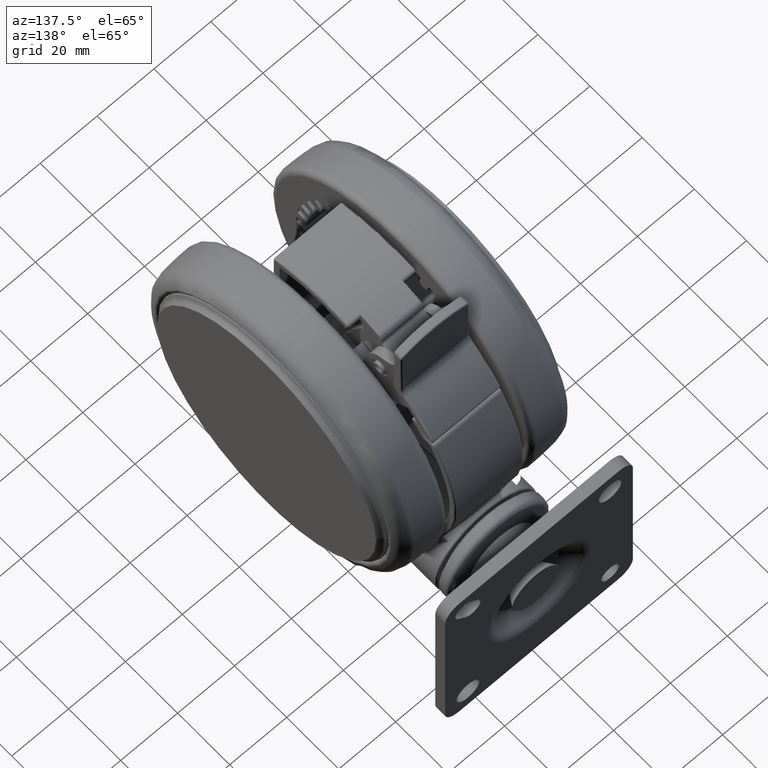
[diagram: clean part render]
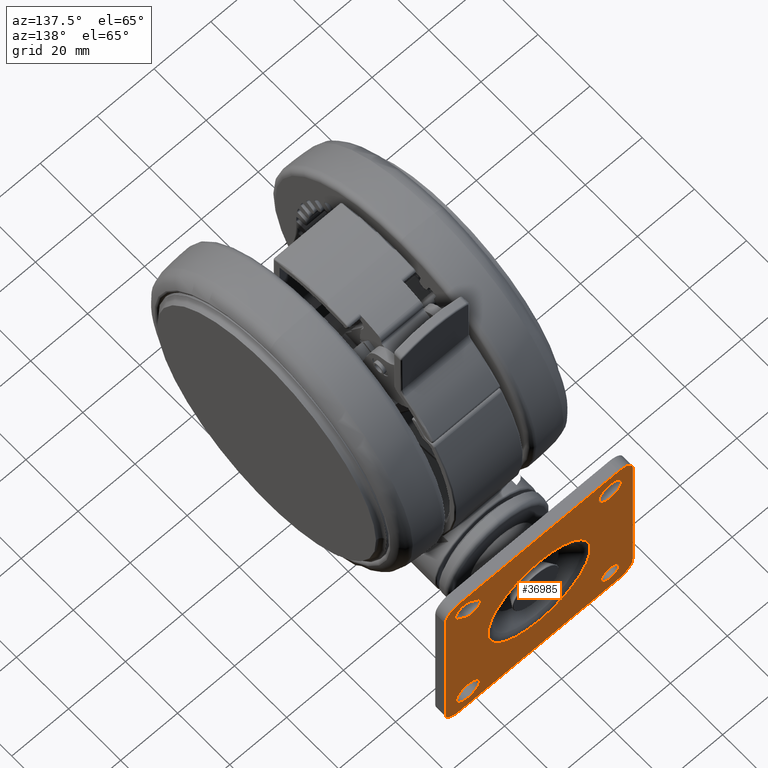
[diagram: same view with one face highlighted and labeled with its STEP entity id]
A machine part, auxiliary view. The second image highlights one B-rep face of the part: STEP entity #36985.
In plain terms, the highlighted planar face has unit normal (-0, -1, -0).
Its self-contained STEP definition (entity closure, byte-faithful):
#169 = CARTESIAN_POINT ( 'NONE',  ( -67.70913555310346500, 64.38509611796749300, -60.59999999999991600 ) ) ;
#667 = CARTESIAN_POINT ( 'NONE',  ( -68.78298377548159700, 11.39597600831103800, -57.60000000000275800 ) ) ;
#1983 = DIRECTION ( 'NONE',  ( 0.9997947190500680000, -0.02026128721468082100, -3.697785493223492800E-032 ) ) ;
#2478 = DIRECTION ( 'NONE',  ( -0.02026128721468178900, -0.9997947190500680000, 1.387778780781445700E-015 ) ) ;
#2587 = CARTESIAN_POINT ( 'NONE',  ( -68.84376763712559500, 8.396591851163682600, 0.4000000000000877900 ) ) ;
#2738 = FACE_BOUND ( 'NONE', #82946, .T. ) ;
#2905 = EDGE_CURVE ( 'NONE', #13064, #24455, #23645, .T. ) ;
#3110 = CARTESIAN_POINT ( 'NONE',  ( -67.70913555310346500, 64.38509611796749300, -4.599999999999913500 ) ) ;
#3217 = CARTESIAN_POINT ( 'NONE',  ( -68.70193862662287600, 15.39515488451129600, -57.60000000000275800 ) ) ;
#3739 = EDGE_CURVE ( 'NONE', #56880, #16636, #63595, .T. ) ;
#5003 = AXIS2_PLACEMENT_3D ( 'NONE', #32990, #77808, #39434 ) ;
#5074 = EDGE_CURVE ( 'NONE', #54279, #35074, #32438, .T. ) ;
#5092 = CIRCLE ( 'NONE', #33251, 17.99193848055664400 ) ;
#5484 = CARTESIAN_POINT ( 'NONE',  ( -67.70710942438194000, 64.48507558987533600, -57.60000000000275800 ) ) ;
#6494 = CARTESIAN_POINT ( 'NONE',  ( -67.91191176201110100, 54.37908906289973700, -32.59999999999991600 ) ) ;
#6550 = DIRECTION ( 'NONE',  ( -0.02026128721468178900, -0.9997947190500677800, 0.0000000000000000000 ) ) ;
#6975 = ORIENTED_EDGE ( 'NONE', *, *, #66624, .F. ) ;
#7043 = DIRECTION ( 'NONE',  ( -0.02026128721467977700, -0.9997947190500680000, 0.0000000000000000000 ) ) ;
#7289 = DIRECTION ( 'NONE',  ( 0.9997947190500680000, -0.02026128721468082100, -3.697785493223492800E-032 ) ) ;
#7945 = AXIS2_PLACEMENT_3D ( 'NONE', #3110, #47915, #9516 ) ;
#8338 = ORIENTED_EDGE ( 'NONE', *, *, #40302, .T. ) ;
#8820 = CARTESIAN_POINT ( 'NONE',  ( -68.75576267766992100, 12.73920309701977200, -8.943502884254565200 ) ) ;
#9330 = CARTESIAN_POINT ( 'NONE',  ( -68.84376763712559500, 8.396591851163686100, -65.59999999999990900 ) ) ;
#9516 = DIRECTION ( 'NONE',  ( -0.02026128721468178900, -0.9997947190500677800, 0.0000000000000000000 ) ) ;
#10451 = DIRECTION ( 'NONE',  ( -0.9997947190500680000, 0.02026128721468082100, 3.697785493223492800E-032 ) ) ;
#10952 = EDGE_LOOP ( 'NONE', ( #40491, #30424 ) ) ;
#11080 = ORIENTED_EDGE ( 'NONE', *, *, #58726, .T. ) ;
#11489 = CARTESIAN_POINT ( 'NONE',  ( -68.76579150317947200, 12.24432995907539400, -4.064466094067364000 ) ) ;
#11974 = AXIS2_PLACEMENT_3D ( 'NONE', #169, #44953, #6550 ) ;
#11997 = DIRECTION ( 'NONE',  ( 0.9997947190500678900, -0.02026128721468081800, -3.697785493223492300E-032 ) ) ;
#12287 = PLANE ( 'NONE',  #53943 ) ;
#12503 = CARTESIAN_POINT ( 'NONE',  ( -67.76991941474744900, 61.38571196082013900, -7.599999999997064200 ) ) ;
#12706 = EDGE_CURVE ( 'NONE', #51724, #51621, #47993, .T. ) ;
#12864 = VECTOR ( 'NONE', #81546, 999.9999999999998900 ) ;
#13064 = VERTEX_POINT ( 'NONE', #17512 ) ;
#13652 = EDGE_CURVE ( 'NONE', #53057, #13064, #29981, .T. ) ;
#15274 = DIRECTION ( 'NONE',  ( 0.02026128721468034900, 0.9997947190500678900, 0.0000000000000000000 ) ) ;
#15576 = LINE ( 'NONE', #33256, #60717 ) ;
#15922 = EDGE_CURVE ( 'NONE', #45115, #28688, #26577, .T. ) ;
#16304 = VERTEX_POINT ( 'NONE', #78425 ) ;
#16636 = VERTEX_POINT ( 'NONE', #5484 ) ;
#17291 = CIRCLE ( 'NONE', #44058, 3.099999999999987200 ) ;
#17512 = CARTESIAN_POINT ( 'NONE',  ( -68.71134930755620500, 14.93078413648765100, -6.751471862576276600 ) ) ;
#18715 = ORIENTED_EDGE ( 'NONE', *, *, #61618, .T. ) ;
#18798 = DIRECTION ( 'NONE',  ( -0.02026128721468081800, -0.9997947190500678900, 0.0000000000000000000 ) ) ;
#18947 = CARTESIAN_POINT ( 'NONE',  ( -67.68887426588872800, 65.38489083702039300, -7.599999999997065100 ) ) ;
#18988 = DIRECTION ( 'NONE',  ( -0.02026128721467978000, -0.9997947190500680000, 0.0000000000000000000 ) ) ;
#19448 = EDGE_LOOP ( 'NONE', ( #79050, #73068, #66179, #24798, #39660, #18715, #81440, #8338 ) ) ;
#19472 = CARTESIAN_POINT ( 'NONE',  ( -68.64099142821795900, 18.40259890623126900, -32.59999999999991600 ) ) ;
#19939 = DIRECTION ( 'NONE',  ( 0.9997947190500680000, -0.02026128721468082100, -3.697785493223492800E-032 ) ) ;
#20376 = DIRECTION ( 'NONE',  ( -0.01432689358506922400, -0.7069616256348081300, 0.7071067811865415800 ) ) ;
#20912 = CARTESIAN_POINT ( 'NONE',  ( -68.84376763712559500, 8.396591851163682600, -4.599999999999913500 ) ) ;
#20921 = CARTESIAN_POINT ( 'NONE',  ( -68.94507407319899500, 3.397618255913344300, -50.59999999999991600 ) ) ;
#21015 = EDGE_CURVE ( 'NONE', #31296, #62566, #56837, .T. ) ;
#21029 = ORIENTED_EDGE ( 'NONE', *, *, #31649, .T. ) ;
#22486 = DIRECTION ( 'NONE',  ( -0.9997947190500680000, 0.02026128721468082100, 3.697785493223492800E-032 ) ) ;
#22500 = CARTESIAN_POINT ( 'NONE',  ( -68.94507407319899500, 3.397618255913344300, -60.59999999999991600 ) ) ;
#22870 = CARTESIAN_POINT ( 'NONE',  ( -67.60782911703006400, 69.38406971321784100, -65.59999999999990900 ) ) ;
#22999 = EDGE_CURVE ( 'NONE', #51621, #51724, #44840, .T. ) ;
#23102 = CARTESIAN_POINT ( 'NONE',  ( -68.86402892434031700, 7.396797132110780400, -57.60000000000275800 ) ) ;
#23152 = DIRECTION ( 'NONE',  ( 0.02026128721468081800, 0.9997947190500678900, 0.0000000000000000000 ) ) ;
#23645 = CIRCLE ( 'NONE', #41479, 3.099999999999987200 ) ;
#23872 = VECTOR ( 'NONE', #71454, 1000.000000000000100 ) ;
#24442 = AXIS2_PLACEMENT_3D ( 'NONE', #12503, #57349, #18988 ) ;
#24455 = VERTEX_POINT ( 'NONE', #54364 ) ;
#24798 = ORIENTED_EDGE ( 'NONE', *, *, #15922, .T. ) ;
#24930 = CARTESIAN_POINT ( 'NONE',  ( -67.70913555310346500, 64.38509611796749300, -65.59999999999990900 ) ) ;
#26473 = CIRCLE ( 'NONE', #39784, 3.999999999999986200 ) ;
#26577 = CIRCLE ( 'NONE', #7945, 5.000000000000000000 ) ;
#27329 = DIRECTION ( 'NONE',  ( -0.02026128721468178900, -0.9997947190500680000, 0.0000000000000000000 ) ) ;
#27915 = EDGE_CURVE ( 'NONE', #30059, #53057, #46171, .T. ) ;
#28159 = EDGE_CURVE ( 'NONE', #65334, #80438, #77204, .T. ) ;
#28688 = VERTEX_POINT ( 'NONE', #45652 ) ;
#29305 = CARTESIAN_POINT ( 'NONE',  ( -68.78298377548159700, 11.39597600831103800, -57.60000000000275800 ) ) ;
#29981 = LINE ( 'NONE', #11489, #12864 ) ;
#30059 = VERTEX_POINT ( 'NONE', #59748 ) ;
#30424 = ORIENTED_EDGE ( 'NONE', *, *, #81259, .T. ) ;
#30590 = CARTESIAN_POINT ( 'NONE',  ( -67.70913555310346500, 64.38509611796749300, 0.4000000000000877900 ) ) ;
#31296 = VERTEX_POINT ( 'NONE', #9330 ) ;
#31649 = EDGE_CURVE ( 'NONE', #54165, #67025, #5092, .T. ) ;
#31947 = CARTESIAN_POINT ( 'NONE',  ( -67.76991941474744900, 61.38571196082013900, -7.599999999997064200 ) ) ;
#32256 = ORIENTED_EDGE ( 'NONE', *, *, #2905, .F. ) ;
#32438 = CIRCLE ( 'NONE', #48580, 5.000000000000000000 ) ;
#32787 = FACE_BOUND ( 'NONE', #10952, .T. ) ;
#32990 = CARTESIAN_POINT ( 'NONE',  ( -67.76991941474744900, 61.38571196082013900, -57.60000000000275800 ) ) ;
#33251 = AXIS2_PLACEMENT_3D ( 'NONE', #45696, #7289, #52133 ) ;
#33256 = CARTESIAN_POINT ( 'NONE',  ( -68.80017604778363700, 10.54762205755193200, -11.13553390593286700 ) ) ;
#34580 = VECTOR ( 'NONE', #52534, 1000.000000000000000 ) ;
#34823 = FACE_BOUND ( 'NONE', #67668, .T. ) ;
#35074 = VERTEX_POINT ( 'NONE', #2587 ) ;
#35743 = DIRECTION ( 'NONE',  ( -0.02026128721467977700, -0.9997947190500680000, 0.0000000000000000000 ) ) ;
#36195 = ORIENTED_EDGE ( 'NONE', *, *, #22999, .T. ) ;
#36985 = ADVANCED_FACE ( 'NONE', ( #2738, #66895, #34823, #32787, #81856, #64867 ), #12287, .F. ) ;
#38375 = DIRECTION ( 'NONE',  ( -0.02026128721467978000, -0.9997947190500680000, 0.0000000000000000000 ) ) ;
#39434 = DIRECTION ( 'NONE',  ( -0.02026128721468034900, -0.9997947190500678900, 0.0000000000000000000 ) ) ;
#39660 = ORIENTED_EDGE ( 'NONE', *, *, #55916, .F. ) ;
#39784 = AXIS2_PLACEMENT_3D ( 'NONE', #29305, #74105, #35743 ) ;
#39842 = ORIENTED_EDGE ( 'NONE', *, *, #28159, .T. ) ;
#40302 = EDGE_CURVE ( 'NONE', #31296, #59180, #52398, .T. ) ;
#40342 = CARTESIAN_POINT ( 'NONE',  ( -67.76991941474744900, 61.38571196082013900, -57.60000000000275800 ) ) ;
#40491 = ORIENTED_EDGE ( 'NONE', *, *, #3739, .T. ) ;
#40851 = DIRECTION ( 'NONE',  ( -0.9997947190500680000, 0.02026128721468082100, 3.697785493223492800E-032 ) ) ;
#41479 = AXIS2_PLACEMENT_3D ( 'NONE', #60889, #22486, #67315 ) ;
#43026 = CARTESIAN_POINT ( 'NONE',  ( -67.85096456360615500, 57.38653308461988400, -7.599999999997064200 ) ) ;
#44004 = EDGE_CURVE ( 'NONE', #54279, #59180, #68652, .T. ) ;
#44058 = AXIS2_PLACEMENT_3D ( 'NONE', #8820, #53646, #15274 ) ;
#44243 = CARTESIAN_POINT ( 'NONE',  ( -68.27645159511452300, 36.39084398456558500, -32.59999999999991600 ) ) ;
#44840 = CIRCLE ( 'NONE', #72371, 3.999999999999985300 ) ;
#44953 = DIRECTION ( 'NONE',  ( -0.9997947190500680000, 0.02026128721468082100, 3.697785493223492800E-032 ) ) ;
#45115 = VERTEX_POINT ( 'NONE', #30590 ) ;
#45433 = DIRECTION ( 'NONE',  ( 0.9997947190500680000, -0.02026128721468082100, -3.697785493223492800E-032 ) ) ;
#45652 = CARTESIAN_POINT ( 'NONE',  ( -67.60782911703006400, 69.38406971321782600, -4.599999999999913500 ) ) ;
#45696 = CARTESIAN_POINT ( 'NONE',  ( -68.27645159511452300, 36.39084398456550700, -32.59999999999991600 ) ) ;
#46171 = CIRCLE ( 'NONE', #75947, 3.100000000000002300 ) ;
#46784 = DIRECTION ( 'NONE',  ( -0.02026128721468034900, -0.9997947190500678900, 0.0000000000000000000 ) ) ;
#46952 = LINE ( 'NONE', #60725, #79046 ) ;
#47834 = CIRCLE ( 'NONE', #62728, 17.99193848055664400 ) ;
#47915 = DIRECTION ( 'NONE',  ( -0.9997947190500680000, 0.02026128721468082100, 3.697785493223492800E-032 ) ) ;
#47993 = CIRCLE ( 'NONE', #24442, 3.999999999999985300 ) ;
#48580 = AXIS2_PLACEMENT_3D ( 'NONE', #20912, #65724, #27329 ) ;
#48866 = CARTESIAN_POINT ( 'NONE',  ( -68.81020487329318800, 10.05274891960750200, -6.256497115745711200 ) ) ;
#51621 = VERTEX_POINT ( 'NONE', #43026 ) ;
#51724 = VERTEX_POINT ( 'NONE', #18947 ) ;
#52133 = DIRECTION ( 'NONE',  ( -0.02026128721468106000, -0.9997947190500677800, 0.0000000000000000000 ) ) ;
#52398 = CIRCLE ( 'NONE', #54213, 5.000000000000000000 ) ;
#52534 = DIRECTION ( 'NONE',  ( -7.070322314059470400E-035, 1.432832444260775400E-036, -1.000000000000000000 ) ) ;
#52840 = CARTESIAN_POINT ( 'NONE',  ( -67.60782911703006400, 69.38406971321784100, -60.59999999999990900 ) ) ;
#53057 = VERTEX_POINT ( 'NONE', #64752 ) ;
#53646 = DIRECTION ( 'NONE',  ( -0.9997947190500680000, 0.02026128721468082100, 3.697785493223492800E-032 ) ) ;
#53943 = AXIS2_PLACEMENT_3D ( 'NONE', #44243, #11997, #18798 ) ;
#54165 = VERTEX_POINT ( 'NONE', #19472 ) ;
#54213 = AXIS2_PLACEMENT_3D ( 'NONE', #79217, #40851, #2478 ) ;
#54248 = ORIENTED_EDGE ( 'NONE', *, *, #27915, .F. ) ;
#54279 = VERTEX_POINT ( 'NONE', #59241 ) ;
#54338 = CARTESIAN_POINT ( 'NONE',  ( -67.83272940511295700, 58.28634833176494100, -57.60000000000275800 ) ) ;
#54364 = CARTESIAN_POINT ( 'NONE',  ( -68.69295268730441300, 15.83856672607496900, -8.943502884254565200 ) ) ;
#54831 = EDGE_CURVE ( 'NONE', #45115, #35074, #74992, .T. ) ;
#55303 = DIRECTION ( 'NONE',  ( 0.02026128721468025200, 0.9997947190500680000, 0.0000000000000000000 ) ) ;
#55916 = EDGE_CURVE ( 'NONE', #60127, #28688, #46952, .T. ) ;
#56647 = EDGE_CURVE ( 'NONE', #67025, #54165, #47834, .T. ) ;
#56837 = LINE ( 'NONE', #22870, #73880 ) ;
#56880 = VERTEX_POINT ( 'NONE', #54338 ) ;
#57349 = DIRECTION ( 'NONE',  ( 0.9997947190500680000, -0.02026128721468082100, -3.697785493223492800E-032 ) ) ;
#58324 = CARTESIAN_POINT ( 'NONE',  ( -68.27645159511452300, 36.39084398456550700, -32.59999999999991600 ) ) ;
#58726 = EDGE_CURVE ( 'NONE', #80438, #65334, #26473, .T. ) ;
#59180 = VERTEX_POINT ( 'NONE', #22500 ) ;
#59241 = CARTESIAN_POINT ( 'NONE',  ( -68.94507407319899500, 3.397618255913344300, -4.599999999999917000 ) ) ;
#59748 = CARTESIAN_POINT ( 'NONE',  ( -68.85461824340690400, 7.861167880139665200, -8.448528137424013100 ) ) ;
#60127 = VERTEX_POINT ( 'NONE', #52840 ) ;
#60717 = VECTOR ( 'NONE', #20376, 1000.000000000000000 ) ;
#60725 = CARTESIAN_POINT ( 'NONE',  ( -67.60782911703006400, 69.38406971321782600, 0.4000000000000877900 ) ) ;
#60889 = CARTESIAN_POINT ( 'NONE',  ( -68.75576267766992100, 12.73920309701977200, -8.943502884254565200 ) ) ;
#61618 = EDGE_CURVE ( 'NONE', #60127, #62566, #70234, .T. ) ;
#62566 = VERTEX_POINT ( 'NONE', #24930 ) ;
#62728 = AXIS2_PLACEMENT_3D ( 'NONE', #58324, #19939, #64758 ) ;
#63595 = CIRCLE ( 'NONE', #5003, 3.099999999999987200 ) ;
#63830 = CIRCLE ( 'NONE', #64031, 3.099999999999987200 ) ;
#64031 = AXIS2_PLACEMENT_3D ( 'NONE', #40342, #1983, #46784 ) ;
#64746 = EDGE_CURVE ( 'NONE', #16304, #30059, #15576, .T. ) ;
#64752 = CARTESIAN_POINT ( 'NONE',  ( -68.76579150317947200, 12.24432995907539400, -4.064466094067364000 ) ) ;
#64758 = DIRECTION ( 'NONE',  ( -0.02026128721468106000, -0.9997947190500677800, 0.0000000000000000000 ) ) ;
#64867 = FACE_OUTER_BOUND ( 'NONE', #19448, .T. ) ;
#65010 = CARTESIAN_POINT ( 'NONE',  ( -68.94507407319899500, 3.397618255913344300, 0.4000000000000877900 ) ) ;
#65334 = VERTEX_POINT ( 'NONE', #3217 ) ;
#65692 = ORIENTED_EDGE ( 'NONE', *, *, #56647, .T. ) ;
#65724 = DIRECTION ( 'NONE',  ( -0.9997947190500680000, 0.02026128721468082100, 3.697785493223492800E-032 ) ) ;
#66179 = ORIENTED_EDGE ( 'NONE', *, *, #54831, .F. ) ;
#66624 = EDGE_CURVE ( 'NONE', #24455, #16304, #17291, .T. ) ;
#66881 = DIRECTION ( 'NONE',  ( -2.756684751750239200E-018, -1.360288133563756000E-016, 1.000000000000000000 ) ) ;
#66895 = FACE_BOUND ( 'NONE', #81336, .T. ) ;
#67025 = VERTEX_POINT ( 'NONE', #6494 ) ;
#67315 = DIRECTION ( 'NONE',  ( 0.02026128721468034900, 0.9997947190500678900, 0.0000000000000000000 ) ) ;
#67668 = EDGE_LOOP ( 'NONE', ( #11080, #39842 ) ) ;
#68652 = LINE ( 'NONE', #20921, #34580 ) ;
#70234 = CIRCLE ( 'NONE', #11974, 5.000000000000000000 ) ;
#71454 = DIRECTION ( 'NONE',  ( -0.02026128721468081800, -0.9997947190500678900, 0.0000000000000000000 ) ) ;
#72371 = AXIS2_PLACEMENT_3D ( 'NONE', #31947, #76757, #38375 ) ;
#73068 = ORIENTED_EDGE ( 'NONE', *, *, #5074, .T. ) ;
#73880 = VECTOR ( 'NONE', #23152, 1000.000000000000100 ) ;
#73971 = ORIENTED_EDGE ( 'NONE', *, *, #64746, .F. ) ;
#74105 = DIRECTION ( 'NONE',  ( 0.9997947190500680000, -0.02026128721468082100, -3.697785493223492800E-032 ) ) ;
#74992 = LINE ( 'NONE', #65010, #23872 ) ;
#75363 = ORIENTED_EDGE ( 'NONE', *, *, #13652, .F. ) ;
#75947 = AXIS2_PLACEMENT_3D ( 'NONE', #48866, #10451, #55303 ) ;
#76757 = DIRECTION ( 'NONE',  ( 0.9997947190500680000, -0.02026128721468082100, -3.697785493223492800E-032 ) ) ;
#77204 = CIRCLE ( 'NONE', #82894, 3.999999999999986200 ) ;
#77768 = EDGE_LOOP ( 'NONE', ( #75363, #54248, #73971, #6975, #32256 ) ) ;
#77808 = DIRECTION ( 'NONE',  ( 0.9997947190500680000, -0.02026128721468082100, -3.697785493223492800E-032 ) ) ;
#78425 = CARTESIAN_POINT ( 'NONE',  ( -68.80017604778363700, 10.54762205755193200, -11.13553390593286700 ) ) ;
#79046 = VECTOR ( 'NONE', #66881, 1000.000000000000000 ) ;
#79050 = ORIENTED_EDGE ( 'NONE', *, *, #44004, .F. ) ;
#79217 = CARTESIAN_POINT ( 'NONE',  ( -68.84376763712559500, 8.396591851163682600, -60.59999999999991600 ) ) ;
#79996 = ORIENTED_EDGE ( 'NONE', *, *, #12706, .T. ) ;
#80438 = VERTEX_POINT ( 'NONE', #23102 ) ;
#81259 = EDGE_CURVE ( 'NONE', #16636, #56880, #63830, .T. ) ;
#81336 = EDGE_LOOP ( 'NONE', ( #36195, #79996 ) ) ;
#81440 = ORIENTED_EDGE ( 'NONE', *, *, #21015, .F. ) ;
#81546 = DIRECTION ( 'NONE',  ( 0.01432689358506911300, 0.7069616256348025800, -0.7071067811865470200 ) ) ;
#81856 = FACE_BOUND ( 'NONE', #77768, .T. ) ;
#82894 = AXIS2_PLACEMENT_3D ( 'NONE', #667, #45433, #7043 ) ;
#82946 = EDGE_LOOP ( 'NONE', ( #21029, #65692 ) ) ;